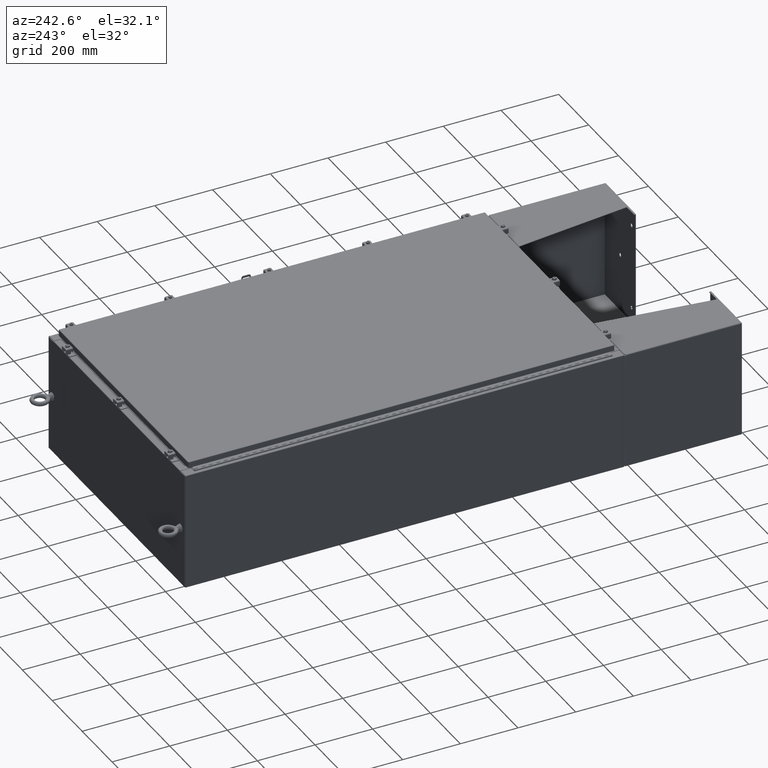
[diagram: clean part render]
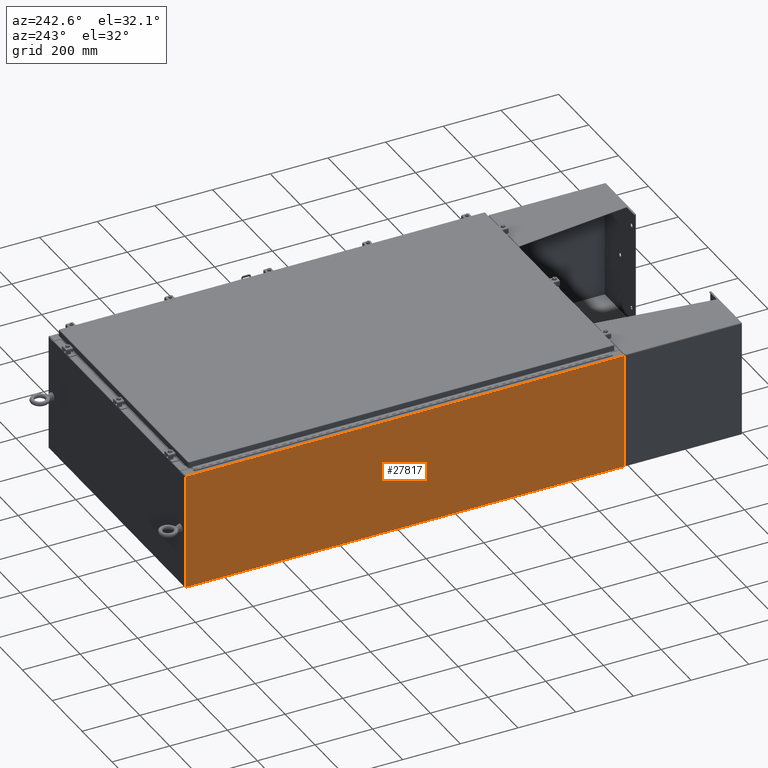
[diagram: same view with one face highlighted and labeled with its STEP entity id]
A machine part, auxiliary view. The second image highlights one B-rep face of the part: STEP entity #27817.
In plain terms, the highlighted planar face has unit normal (1, 0, 0).
Its self-contained STEP definition (entity closure, byte-faithful):
#5115 = EDGE_CURVE ( 'NONE', #27733, #22743, #64444, .T. ) ;
#5356 = CARTESIAN_POINT ( 'NONE',  ( -18.00000000000000400, 0.0000000000000000000, -6.201571169367084500E-014 ) ) ;
#12060 = VECTOR ( 'NONE', #55573, 39.37007874015748100 ) ;
#12559 = CARTESIAN_POINT ( 'NONE',  ( -18.00000000000006000, -29.92530000000001100, 15.83759999999999700 ) ) ;
#15290 = CARTESIAN_POINT ( 'NONE',  ( -18.00000000000000400, 29.92529999999998900, -6.201571169367084500E-014 ) ) ;
#18917 = CARTESIAN_POINT ( 'NONE',  ( -18.00000000000006000, -29.92530000000001800, 15.83759999999999700 ) ) ;
#20356 = CARTESIAN_POINT ( 'NONE',  ( -18.00000000000000400, -29.92530000000001100, -6.201571169367084500E-014 ) ) ;
#22743 = VERTEX_POINT ( 'NONE', #67024 ) ;
#23397 = EDGE_CURVE ( 'NONE', #46493, #22743, #35914, .T. ) ;
#25798 = EDGE_LOOP ( 'NONE', ( #28174, #36088, #51849, #46059 ) ) ;
#25878 = LINE ( 'NONE', #18917, #12060 ) ;
#27733 = VERTEX_POINT ( 'NONE', #67387 ) ;
#27817 = ADVANCED_FACE ( 'NONE', ( #33704 ), #47229, .F. ) ;
#28174 = ORIENTED_EDGE ( 'NONE', *, *, #49384, .T. ) ;
#33314 = CARTESIAN_POINT ( 'NONE',  ( -18.00000000000000400, 29.92529999999998900, 0.01299999999999984700 ) ) ;
#33458 = DIRECTION ( 'NONE',  ( -0.0000000000000000000, 1.000000000000000000, -0.0000000000000000000 ) ) ;
#33704 = FACE_OUTER_BOUND ( 'NONE', #25798, .T. ) ;
#34498 = LINE ( 'NONE', #20356, #62542 ) ;
#35914 = LINE ( 'NONE', #15290, #62329 ) ;
#36088 = ORIENTED_EDGE ( 'NONE', *, *, #23397, .T. ) ;
#36550 = DIRECTION ( 'NONE',  ( 1.000000000000000000, 0.0000000000000000000, 3.430827668758847900E-015 ) ) ;
#36697 = EDGE_CURVE ( 'NONE', #27733, #65310, #34498, .T. ) ;
#41488 = DIRECTION ( 'NONE',  ( 3.430827668758847900E-015, 0.0000000000000000000, -1.000000000000000000 ) ) ;
#41860 = AXIS2_PLACEMENT_3D ( 'NONE', #5356, #36550, #52540 ) ;
#46059 = ORIENTED_EDGE ( 'NONE', *, *, #36697, .T. ) ;
#46493 = VERTEX_POINT ( 'NONE', #47682 ) ;
#47229 = PLANE ( 'NONE',  #41860 ) ;
#47682 = CARTESIAN_POINT ( 'NONE',  ( -18.00000000000005700, 29.92529999999998900, 15.83759999999999700 ) ) ;
#49384 = EDGE_CURVE ( 'NONE', #65310, #46493, #25878, .T. ) ;
#51849 = ORIENTED_EDGE ( 'NONE', *, *, #5115, .F. ) ;
#52158 = VECTOR ( 'NONE', #33458, 39.37007874015748100 ) ;
#52540 = DIRECTION ( 'NONE',  ( 3.430827668758847900E-015, 0.0000000000000000000, -1.000000000000000000 ) ) ;
#55573 = DIRECTION ( 'NONE',  ( 0.0000000000000000000, 1.000000000000000000, 0.0000000000000000000 ) ) ;
#57038 = DIRECTION ( 'NONE',  ( -3.430827668758847900E-015, 0.0000000000000000000, 1.000000000000000000 ) ) ;
#62329 = VECTOR ( 'NONE', #41488, 39.37007874015748100 ) ;
#62542 = VECTOR ( 'NONE', #57038, 39.37007874015748100 ) ;
#64444 = LINE ( 'NONE', #33314, #52158 ) ;
#65310 = VERTEX_POINT ( 'NONE', #12559 ) ;
#67024 = CARTESIAN_POINT ( 'NONE',  ( -18.00000000000000400, 29.92529999999998600, 0.01299999999999984800 ) ) ;
#67387 = CARTESIAN_POINT ( 'NONE',  ( -18.00000000000000400, -29.92530000000001100, 0.01299999999999984700 ) ) ;